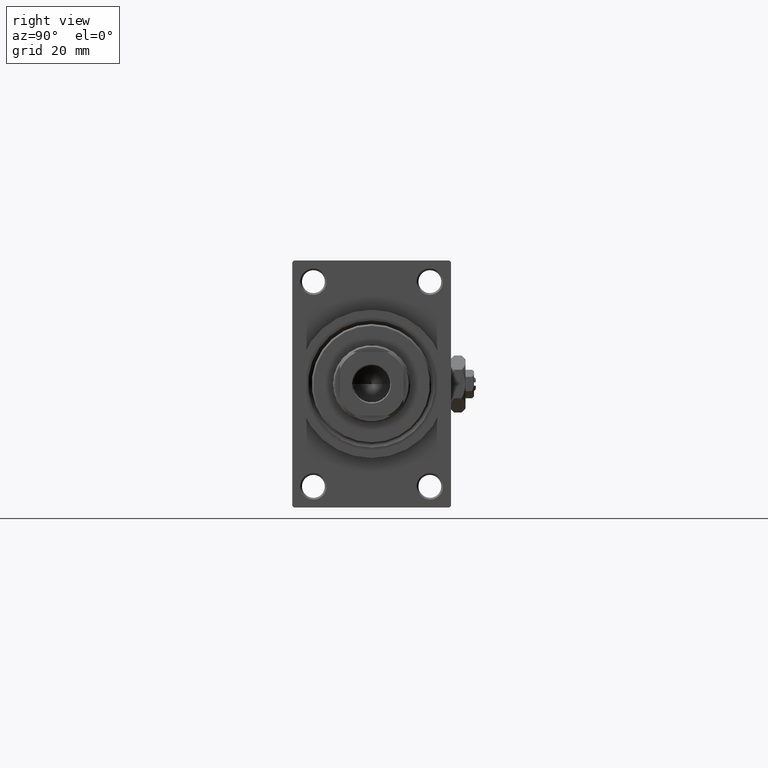
[diagram: clean part render]
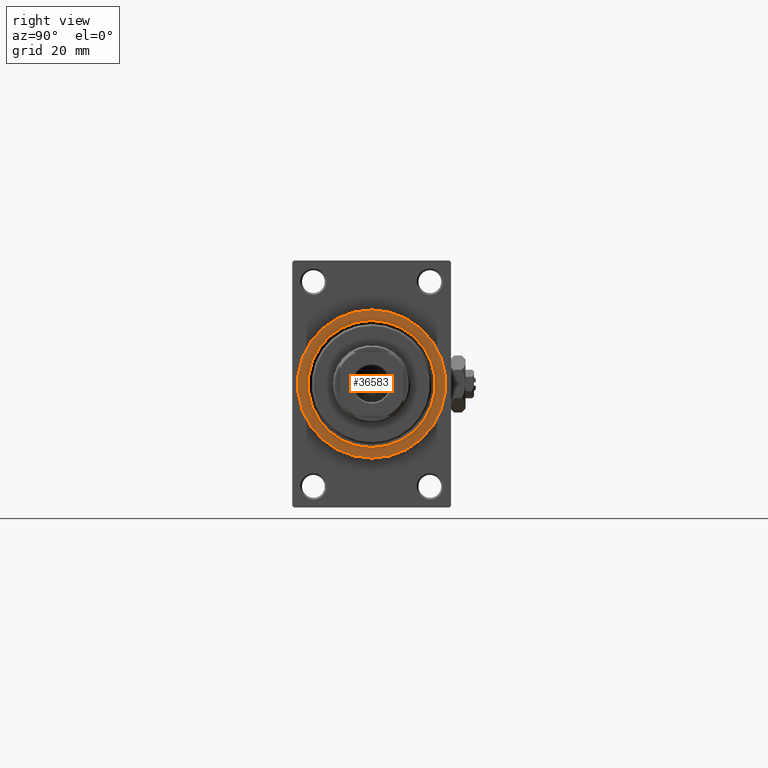
[diagram: same view with one face highlighted and labeled with its STEP entity id]
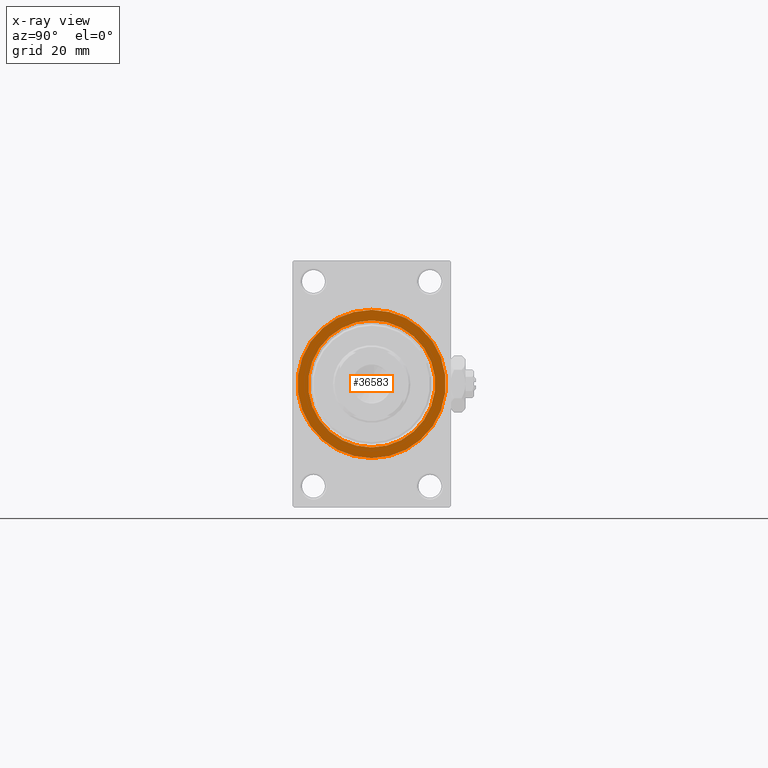
[diagram: x-ray of the same camera — body ghosted, the highlighted face saturated]
A machine part, right view. The second image highlights one B-rep face of the part: STEP entity #36583.
The next image is the same camera in x-ray: the body ghosted, the highlighted face saturated — about 0% of this face is hidden behind the body in this view.
In plain terms, the highlighted planar face has unit normal (1, 0, 0).
Its self-contained STEP definition (entity closure, byte-faithful):
#275 = CIRCLE ( 'NONE', #27289, 21.00000000000000000 ) ;
#689 = CARTESIAN_POINT ( 'NONE',  ( 153.0000000000000284, 0.000000000000000000, 0.000000000000000000 ) ) ;
#1278 = CARTESIAN_POINT ( 'NONE',  ( 153.0000000000000284, 0.000000000000000000, 0.000000000000000000 ) ) ;
#1695 = VERTEX_POINT ( 'NONE', #18944 ) ;
#3250 = VERTEX_POINT ( 'NONE', #14623 ) ;
#6266 = DIRECTION ( 'NONE',  ( -1.000000000000000000, -0.000000000000000000, -0.000000000000000000 ) ) ;
#8255 = DIRECTION ( 'NONE',  ( -1.000000000000000000, -0.000000000000000000, -0.000000000000000000 ) ) ;
#10768 = CARTESIAN_POINT ( 'NONE',  ( 153.0000000000000284, 2.571758278209441661E-15, -21.00000000000000000 ) ) ;
#11684 = FACE_BOUND ( 'NONE', #27547, .T. ) ;
#12797 = AXIS2_PLACEMENT_3D ( 'NONE', #689, #19829, #28009 ) ;
#14623 = CARTESIAN_POINT ( 'NONE',  ( 153.0000000000000284, 0.000000000000000000, 21.00000000000000000 ) ) ;
#15334 = EDGE_CURVE ( 'NONE', #32482, #1695, #25505, .T. ) ;
#18058 = CARTESIAN_POINT ( 'NONE',  ( 153.0000000000000284, 2.204364238465239372E-15, 18.00000000000002842 ) ) ;
#18944 = CARTESIAN_POINT ( 'NONE',  ( 153.0000000000000284, 0.000000000000000000, -18.00000000000002842 ) ) ;
#19395 = PLANE ( 'NONE',  #40518 ) ;
#19636 = FACE_OUTER_BOUND ( 'NONE', #46990, .T. ) ;
#19829 = DIRECTION ( 'NONE',  ( 1.000000000000000000, 0.000000000000000000, 0.000000000000000000 ) ) ;
#20178 = DIRECTION ( 'NONE',  ( 0.000000000000000000, 0.000000000000000000, -1.000000000000000000 ) ) ;
#21434 = DIRECTION ( 'NONE',  ( 0.000000000000000000, 0.000000000000000000, -1.000000000000000000 ) ) ;
#22866 = DIRECTION ( 'NONE',  ( 1.000000000000000000, 0.000000000000000000, 0.000000000000000000 ) ) ;
#24721 = AXIS2_PLACEMENT_3D ( 'NONE', #1278, #8255, #20178 ) ;
#25502 = CIRCLE ( 'NONE', #12797, 21.00000000000000000 ) ;
#25505 = CIRCLE ( 'NONE', #24721, 18.00000000000002842 ) ;
#25935 = CARTESIAN_POINT ( 'NONE',  ( 153.0000000000000284, 0.000000000000000000, 0.000000000000000000 ) ) ;
#26808 = EDGE_CURVE ( 'NONE', #1695, #32482, #39276, .T. ) ;
#26937 = ORIENTED_EDGE ( 'NONE', *, *, #47829, .T. ) ;
#27289 = AXIS2_PLACEMENT_3D ( 'NONE', #25935, #32902, #40608 ) ;
#27547 = EDGE_LOOP ( 'NONE', ( #45645, #34399 ) ) ;
#28009 = DIRECTION ( 'NONE',  ( 0.000000000000000000, 0.000000000000000000, -1.000000000000000000 ) ) ;
#32482 = VERTEX_POINT ( 'NONE', #18058 ) ;
#32884 = ORIENTED_EDGE ( 'NONE', *, *, #38933, .T. ) ;
#32902 = DIRECTION ( 'NONE',  ( 1.000000000000000000, 0.000000000000000000, 0.000000000000000000 ) ) ;
#34399 = ORIENTED_EDGE ( 'NONE', *, *, #15334, .T. ) ;
#36244 = VERTEX_POINT ( 'NONE', #10768 ) ;
#36583 = ADVANCED_FACE ( 'NONE', ( #11684, #19636 ), #19395, .T. ) ;
#38933 = EDGE_CURVE ( 'NONE', #3250, #36244, #25502, .T. ) ;
#39276 = CIRCLE ( 'NONE', #45627, 18.00000000000002842 ) ;
#40318 = CARTESIAN_POINT ( 'NONE',  ( 153.0000000000000284, 0.000000000000000000, 0.000000000000000000 ) ) ;
#40518 = AXIS2_PLACEMENT_3D ( 'NONE', #42503, #22866, #42741 ) ;
#40608 = DIRECTION ( 'NONE',  ( 0.000000000000000000, 0.000000000000000000, -1.000000000000000000 ) ) ;
#42503 = CARTESIAN_POINT ( 'NONE',  ( 153.0000000000000284, 0.000000000000000000, 0.000000000000000000 ) ) ;
#42741 = DIRECTION ( 'NONE',  ( 0.000000000000000000, 0.000000000000000000, -1.000000000000000000 ) ) ;
#45627 = AXIS2_PLACEMENT_3D ( 'NONE', #40318, #6266, #21434 ) ;
#45645 = ORIENTED_EDGE ( 'NONE', *, *, #26808, .T. ) ;
#46990 = EDGE_LOOP ( 'NONE', ( #32884, #26937 ) ) ;
#47829 = EDGE_CURVE ( 'NONE', #36244, #3250, #275, .T. ) ;